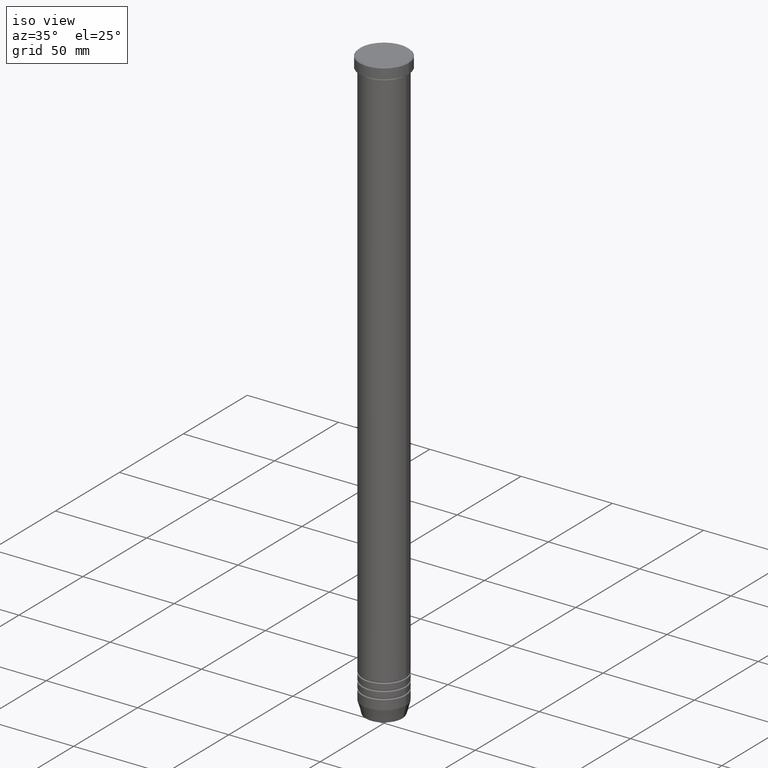
[diagram: clean part render]
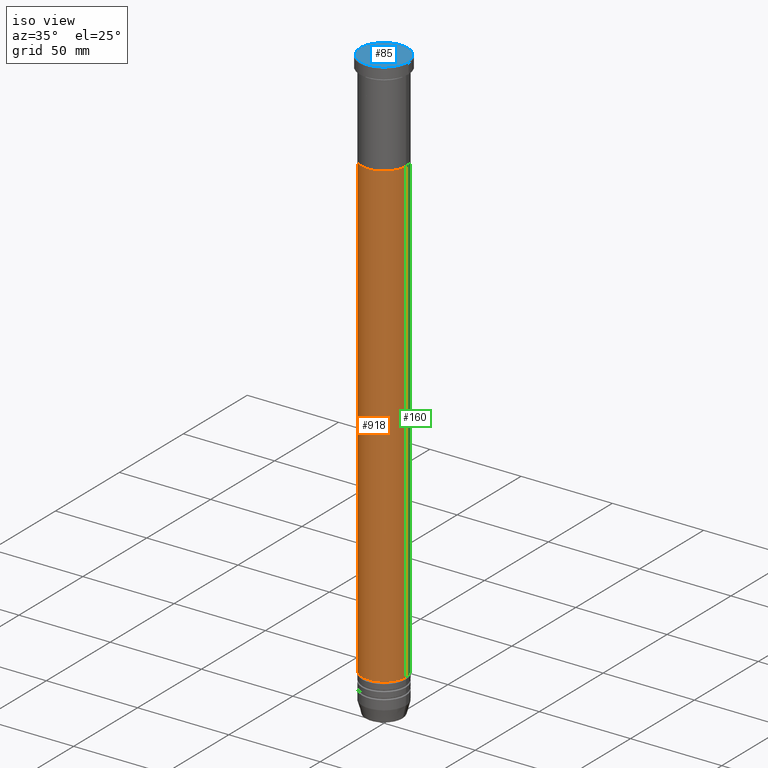
[diagram: same view with three faces highlighted in distinct colors, each labeled with its STEP entity id]
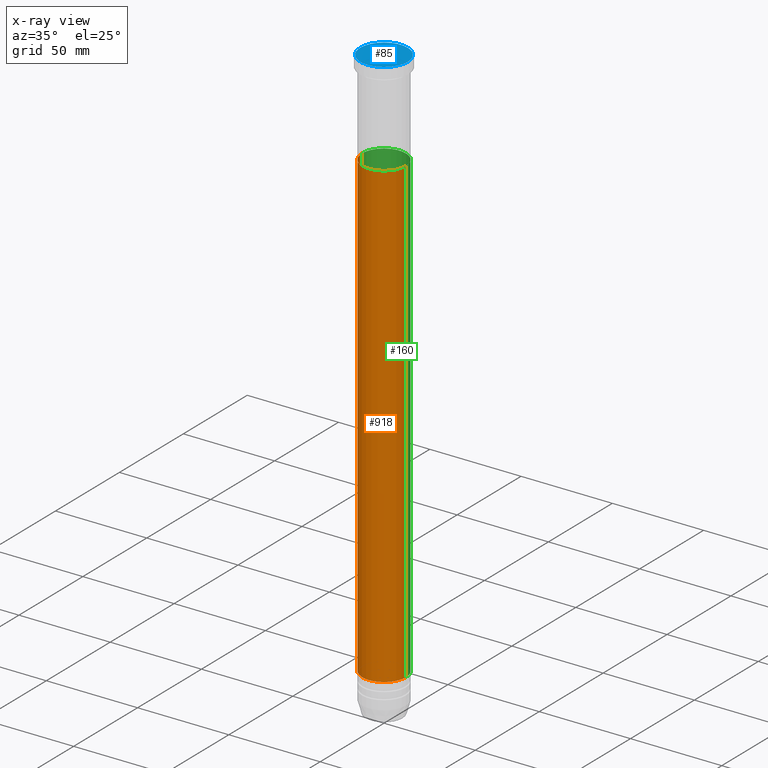
[diagram: x-ray of the same camera — body ghosted, the three highlighted faces saturated]
A machine part, iso view with three faces highlighted in distinct colors.
The next image is the same camera in x-ray (body ghosted, the three faces saturated) — at least one of them is partly hidden behind the body in this view.
Their STEP definitions:

[orange] entity #918 — the highlighted cylindrical surface (edge-blend (fillet) strip) has radius 12 mm, axis along (-0, -0, 1).
#25 = AXIS2_PLACEMENT_3D ( 'NONE', #1042, #264, #331 ) ;
#26 = VERTEX_POINT ( 'NONE', #792 ) ;
#55 = CARTESIAN_POINT ( 'NONE',  ( 11.99999999999999822, 0.000000000000000000, 0.000000000000000000 ) ) ;
#58 = CARTESIAN_POINT ( 'NONE',  ( -11.99999999999999467, 1.469576158976823553E-15, -304.9999999999999432 ) ) ;
#82 = ORIENTED_EDGE ( 'NONE', *, *, #421, .F. ) ;
#106 = CARTESIAN_POINT ( 'NONE',  ( -11.99999999999999822, 1.469576158976823750E-15, 0.000000000000000000 ) ) ;
#131 = DIRECTION ( 'NONE',  ( 1.000000000000000000, 0.000000000000000000, 0.000000000000000000 ) ) ;
#137 = CARTESIAN_POINT ( 'NONE',  ( 11.99999999999999467, 0.000000000000000000, -304.9999999999999432 ) ) ;
#260 = LINE ( 'NONE', #55, #612 ) ;
#264 = DIRECTION ( 'NONE',  ( -0.000000000000000000, -0.000000000000000000, 1.000000000000000000 ) ) ;
#309 = DIRECTION ( 'NONE',  ( 1.000000000000000000, 0.000000000000000000, 0.000000000000000000 ) ) ;
#331 = DIRECTION ( 'NONE',  ( 1.000000000000000000, 0.000000000000000000, 0.000000000000000000 ) ) ;
#351 = VERTEX_POINT ( 'NONE', #137 ) ;
#418 = VECTOR ( 'NONE', #810, 1000.000000000000000 ) ;
#421 = EDGE_CURVE ( 'NONE', #26, #459, #903, .T. ) ;
#422 = EDGE_LOOP ( 'NONE', ( #453, #573, #492, #82 ) ) ;
#453 = ORIENTED_EDGE ( 'NONE', *, *, #819, .F. ) ;
#459 = VERTEX_POINT ( 'NONE', #541 ) ;
#492 = ORIENTED_EDGE ( 'NONE', *, *, #672, .T. ) ;
#541 = CARTESIAN_POINT ( 'NONE',  ( 12.00000000000000178, 0.000000000000000000, -52.00000000000000000 ) ) ;
#544 = CIRCLE ( 'NONE', #25, 11.99999999999999467 ) ;
#573 = ORIENTED_EDGE ( 'NONE', *, *, #1064, .T. ) ;
#585 = CYLINDRICAL_SURFACE ( 'NONE', #994, 11.99999999999999822 ) ;
#612 = VECTOR ( 'NONE', #697, 1000.000000000000000 ) ;
#653 = LINE ( 'NONE', #106, #418 ) ;
#672 = EDGE_CURVE ( 'NONE', #351, #459, #260, .T. ) ;
#697 = DIRECTION ( 'NONE',  ( -0.000000000000000000, -0.000000000000000000, 1.000000000000000000 ) ) ;
#792 = CARTESIAN_POINT ( 'NONE',  ( -12.00000000000000178, 1.469576158976824144E-15, -52.00000000000000000 ) ) ;
#810 = DIRECTION ( 'NONE',  ( -0.000000000000000000, -0.000000000000000000, 1.000000000000000000 ) ) ;
#819 = EDGE_CURVE ( 'NONE', #1018, #26, #653, .T. ) ;
#826 = DIRECTION ( 'NONE',  ( -0.000000000000000000, -0.000000000000000000, 1.000000000000000000 ) ) ;
#831 = DIRECTION ( 'NONE',  ( -0.000000000000000000, -0.000000000000000000, 1.000000000000000000 ) ) ;
#846 = CARTESIAN_POINT ( 'NONE',  ( 0.000000000000000000, 0.000000000000000000, 0.000000000000000000 ) ) ;
#903 = CIRCLE ( 'NONE', #1114, 12.00000000000000178 ) ;
#914 = FACE_OUTER_BOUND ( 'NONE', #422, .T. ) ;
#918 = ADVANCED_FACE ( 'NONE', ( #914 ), #585, .T. ) ;
#991 = CARTESIAN_POINT ( 'NONE',  ( 0.000000000000000000, 0.000000000000000000, -52.00000000000000000 ) ) ;
#994 = AXIS2_PLACEMENT_3D ( 'NONE', #846, #831, #131 ) ;
#1018 = VERTEX_POINT ( 'NONE', #58 ) ;
#1042 = CARTESIAN_POINT ( 'NONE',  ( 0.000000000000000000, 0.000000000000000000, -304.9999999999999432 ) ) ;
#1064 = EDGE_CURVE ( 'NONE', #1018, #351, #544, .T. ) ;
#1114 = AXIS2_PLACEMENT_3D ( 'NONE', #991, #826, #309 ) ;

[blue] entity #85 — the highlighted planar face has unit normal (0, -0, 1).
#28 = DIRECTION ( 'NONE',  ( 1.000000000000000000, 0.000000000000000000, 0.000000000000000000 ) ) ;
#71 = VERTEX_POINT ( 'NONE', #472 ) ;
#85 = ADVANCED_FACE ( 'NONE', ( #802 ), #726, .T. ) ;
#191 = ORIENTED_EDGE ( 'NONE', *, *, #531, .T. ) ;
#258 = EDGE_LOOP ( 'NONE', ( #494, #191 ) ) ;
#263 = DIRECTION ( 'NONE',  ( 1.000000000000000000, 0.000000000000000000, 0.000000000000000000 ) ) ;
#295 = AXIS2_PLACEMENT_3D ( 'NONE', #560, #486, #28 ) ;
#315 = VERTEX_POINT ( 'NONE', #455 ) ;
#455 = CARTESIAN_POINT ( 'NONE',  ( 12.99999999999999289, 1.622657008870242488E-15, 0.000000000000000000 ) ) ;
#472 = CARTESIAN_POINT ( 'NONE',  ( -12.99999999999999289, 0.000000000000000000, 0.000000000000000000 ) ) ;
#482 = CARTESIAN_POINT ( 'NONE',  ( 0.000000000000000000, 0.000000000000000000, 0.000000000000000000 ) ) ;
#486 = DIRECTION ( 'NONE',  ( -0.000000000000000000, -0.000000000000000000, 1.000000000000000000 ) ) ;
#494 = ORIENTED_EDGE ( 'NONE', *, *, #897, .T. ) ;
#523 = CIRCLE ( 'NONE', #295, 12.99999999999999289 ) ;
#531 = EDGE_CURVE ( 'NONE', #315, #71, #1032, .T. ) ;
#560 = CARTESIAN_POINT ( 'NONE',  ( 0.000000000000000000, 0.000000000000000000, 0.000000000000000000 ) ) ;
#570 = DIRECTION ( 'NONE',  ( 0.000000000000000000, -0.000000000000000000, 1.000000000000000000 ) ) ;
#714 = DIRECTION ( 'NONE',  ( -0.000000000000000000, -0.000000000000000000, 1.000000000000000000 ) ) ;
#726 = PLANE ( 'NONE',  #920 ) ;
#802 = FACE_OUTER_BOUND ( 'NONE', #258, .T. ) ;
#868 = AXIS2_PLACEMENT_3D ( 'NONE', #1040, #714, #263 ) ;
#897 = EDGE_CURVE ( 'NONE', #71, #315, #523, .T. ) ;
#920 = AXIS2_PLACEMENT_3D ( 'NONE', #482, #570, #1062 ) ;
#1032 = CIRCLE ( 'NONE', #868, 12.99999999999999289 ) ;
#1040 = CARTESIAN_POINT ( 'NONE',  ( 0.000000000000000000, 0.000000000000000000, 0.000000000000000000 ) ) ;
#1062 = DIRECTION ( 'NONE',  ( 1.000000000000000000, 0.000000000000000000, 0.000000000000000000 ) ) ;

[green] entity #160 — the highlighted cylindrical surface (edge-blend (fillet) strip) has radius 12 mm, axis along (-0, -0, 1).
#1 = EDGE_LOOP ( 'NONE', ( #632, #747, #843, #534 ) ) ;
#14 = CARTESIAN_POINT ( 'NONE',  ( 0.000000000000000000, 0.000000000000000000, -304.9999999999999432 ) ) ;
#26 = VERTEX_POINT ( 'NONE', #792 ) ;
#55 = CARTESIAN_POINT ( 'NONE',  ( 11.99999999999999822, 0.000000000000000000, 0.000000000000000000 ) ) ;
#58 = CARTESIAN_POINT ( 'NONE',  ( -11.99999999999999467, 1.469576158976823553E-15, -304.9999999999999432 ) ) ;
#81 = DIRECTION ( 'NONE',  ( 1.000000000000000000, 0.000000000000000000, 0.000000000000000000 ) ) ;
#106 = CARTESIAN_POINT ( 'NONE',  ( -11.99999999999999822, 1.469576158976823750E-15, 0.000000000000000000 ) ) ;
#137 = CARTESIAN_POINT ( 'NONE',  ( 11.99999999999999467, 0.000000000000000000, -304.9999999999999432 ) ) ;
#160 = ADVANCED_FACE ( 'NONE', ( #581 ), #910, .T. ) ;
#178 = AXIS2_PLACEMENT_3D ( 'NONE', #744, #392, #302 ) ;
#260 = LINE ( 'NONE', #55, #612 ) ;
#294 = DIRECTION ( 'NONE',  ( 1.000000000000000000, 0.000000000000000000, 0.000000000000000000 ) ) ;
#302 = DIRECTION ( 'NONE',  ( 1.000000000000000000, 0.000000000000000000, 0.000000000000000000 ) ) ;
#351 = VERTEX_POINT ( 'NONE', #137 ) ;
#371 = CIRCLE ( 'NONE', #1137, 12.00000000000000178 ) ;
#392 = DIRECTION ( 'NONE',  ( -0.000000000000000000, -0.000000000000000000, 1.000000000000000000 ) ) ;
#418 = VECTOR ( 'NONE', #810, 1000.000000000000000 ) ;
#459 = VERTEX_POINT ( 'NONE', #541 ) ;
#534 = ORIENTED_EDGE ( 'NONE', *, *, #672, .F. ) ;
#541 = CARTESIAN_POINT ( 'NONE',  ( 12.00000000000000178, 0.000000000000000000, -52.00000000000000000 ) ) ;
#553 = DIRECTION ( 'NONE',  ( -0.000000000000000000, -0.000000000000000000, 1.000000000000000000 ) ) ;
#581 = FACE_OUTER_BOUND ( 'NONE', #1, .T. ) ;
#612 = VECTOR ( 'NONE', #697, 1000.000000000000000 ) ;
#632 = ORIENTED_EDGE ( 'NONE', *, *, #1129, .T. ) ;
#653 = LINE ( 'NONE', #106, #418 ) ;
#672 = EDGE_CURVE ( 'NONE', #351, #459, #260, .T. ) ;
#697 = DIRECTION ( 'NONE',  ( -0.000000000000000000, -0.000000000000000000, 1.000000000000000000 ) ) ;
#744 = CARTESIAN_POINT ( 'NONE',  ( 0.000000000000000000, 0.000000000000000000, 0.000000000000000000 ) ) ;
#747 = ORIENTED_EDGE ( 'NONE', *, *, #819, .T. ) ;
#792 = CARTESIAN_POINT ( 'NONE',  ( -12.00000000000000178, 1.469576158976824144E-15, -52.00000000000000000 ) ) ;
#810 = DIRECTION ( 'NONE',  ( -0.000000000000000000, -0.000000000000000000, 1.000000000000000000 ) ) ;
#819 = EDGE_CURVE ( 'NONE', #1018, #26, #653, .T. ) ;
#827 = EDGE_CURVE ( 'NONE', #459, #26, #371, .T. ) ;
#837 = CIRCLE ( 'NONE', #1012, 11.99999999999999467 ) ;
#843 = ORIENTED_EDGE ( 'NONE', *, *, #827, .F. ) ;
#872 = DIRECTION ( 'NONE',  ( -0.000000000000000000, -0.000000000000000000, 1.000000000000000000 ) ) ;
#878 = CARTESIAN_POINT ( 'NONE',  ( 0.000000000000000000, 0.000000000000000000, -52.00000000000000000 ) ) ;
#910 = CYLINDRICAL_SURFACE ( 'NONE', #178, 11.99999999999999822 ) ;
#1012 = AXIS2_PLACEMENT_3D ( 'NONE', #14, #872, #81 ) ;
#1018 = VERTEX_POINT ( 'NONE', #58 ) ;
#1129 = EDGE_CURVE ( 'NONE', #351, #1018, #837, .T. ) ;
#1137 = AXIS2_PLACEMENT_3D ( 'NONE', #878, #553, #294 ) ;